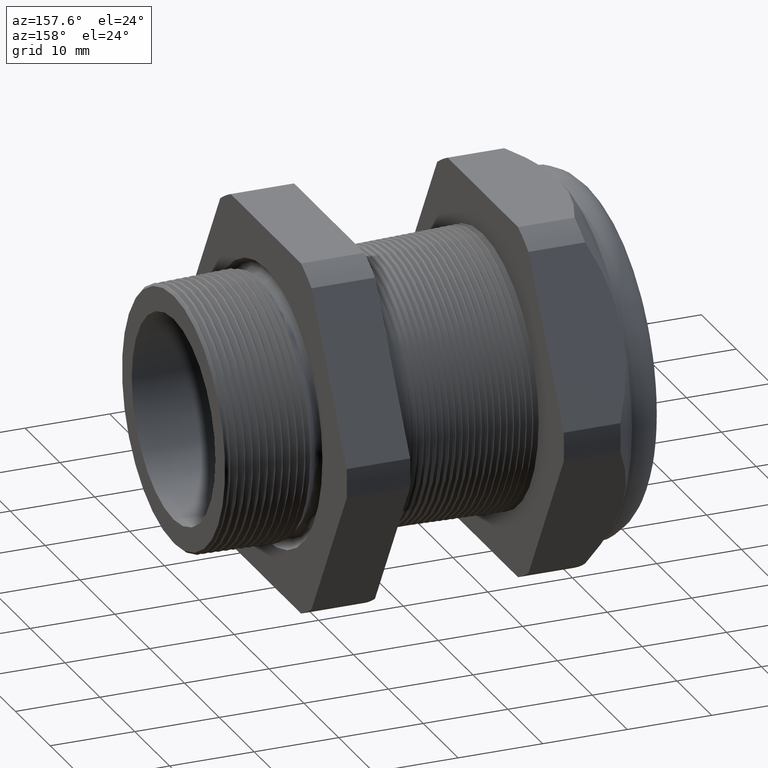
[diagram: clean part render]
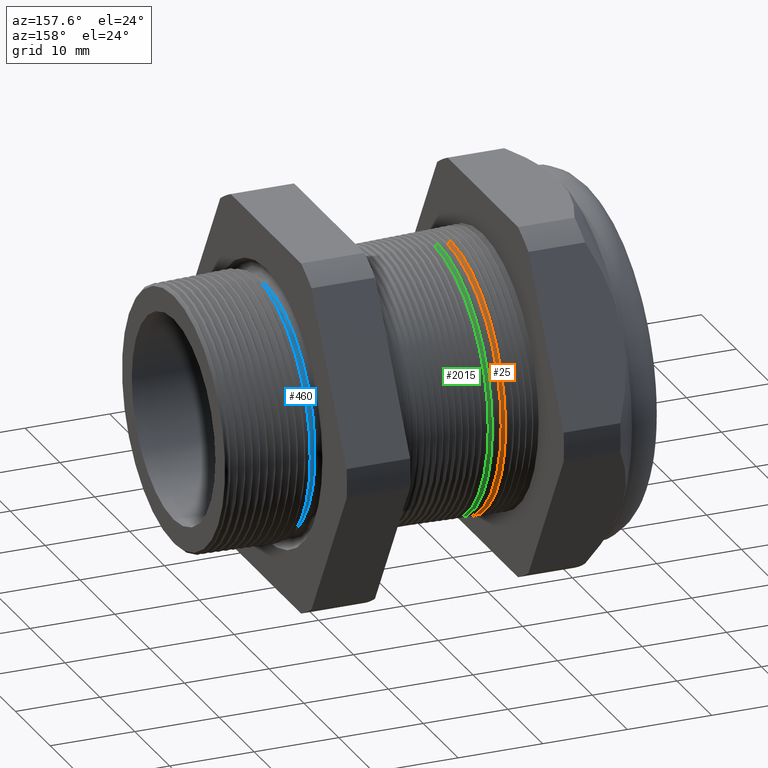
[diagram: same view with three faces highlighted in distinct colors, each labeled with its STEP entity id]
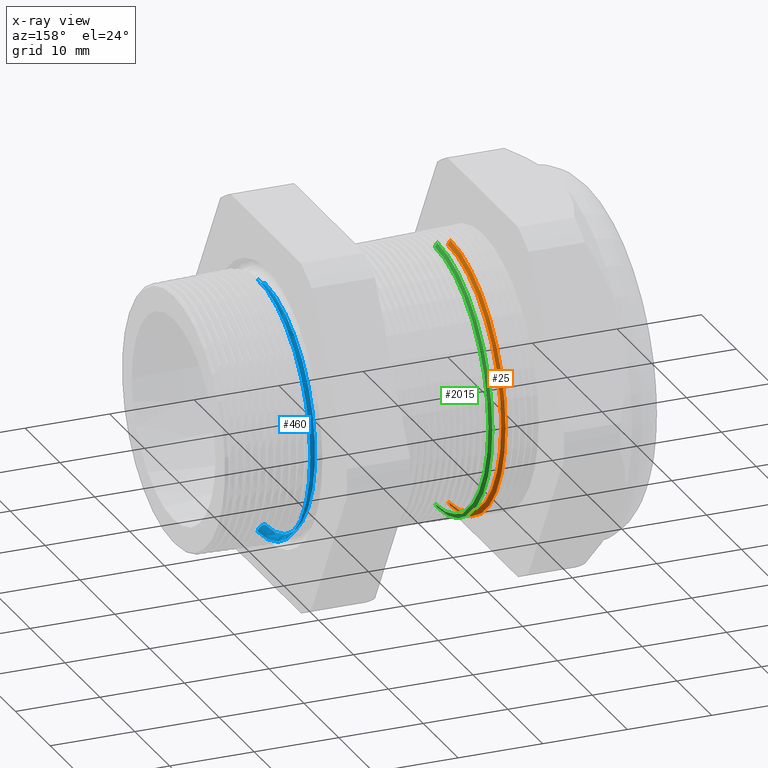
[diagram: x-ray of the same camera — body ghosted, the three highlighted faces saturated]
A machine part, auxiliary view with three faces highlighted in distinct colors.
The next image is the same camera in x-ray (body ghosted, the three faces saturated) — at least one of them is partly hidden behind the body in this view.
Their STEP definitions:

[orange] entity #25 — the highlighted conical surface has half-angle 61.5 deg.
#15 = EDGE_LOOP ( 'NONE', ( #142, #133, #102, #105 ) ) ;
#25 = ADVANCED_FACE ( 'NONE', ( #2114 ), #2113, .T. ) ;
#30 = VERTEX_POINT ( 'NONE', #2165 ) ;
#32 = VERTEX_POINT ( 'NONE', #2159 ) ;
#36 = EDGE_CURVE ( 'NONE', #32, #30, #2157, .T. ) ;
#102 = ORIENTED_EDGE ( 'NONE', *, *, #103, .T. ) ;
#103 = EDGE_CURVE ( 'NONE', #110, #104, #2287, .T. ) ;
#104 = VERTEX_POINT ( 'NONE', #2282 ) ;
#105 = ORIENTED_EDGE ( 'NONE', *, *, #107, .F. ) ;
#107 = EDGE_CURVE ( 'NONE', #30, #104, #2281, .T. ) ;
#110 = VERTEX_POINT ( 'NONE', #2270 ) ;
#131 = EDGE_CURVE ( 'NONE', #32, #110, #280, .T. ) ;
#133 = ORIENTED_EDGE ( 'NONE', *, *, #131, .T. ) ;
#142 = ORIENTED_EDGE ( 'NONE', *, *, #36, .F. ) ;
#279 = CARTESIAN_POINT ( 'NONE',  ( -1.170314960629921000, 7.715274834628325400E-017, -0.6300000000000000000 ) ) ;
#280 = LINE ( 'NONE', #279, #2359 ) ;
#2109 = DIRECTION ( 'NONE',  ( 0.0000000000000000000, 0.0000000000000000000, 1.000000000000000000 ) ) ;
#2110 = DIRECTION ( 'NONE',  ( -1.000000000000000000, 0.0000000000000000000, 0.0000000000000000000 ) ) ;
#2111 = CARTESIAN_POINT ( 'NONE',  ( -1.170314960629921000, 0.0000000000000000000, 0.0000000000000000000 ) ) ;
#2112 = AXIS2_PLACEMENT_3D ( 'NONE', #2111, #2110, #2109 ) ;
#2113 = CONICAL_SURFACE ( 'NONE', #2112, 0.6300000000000000000, 1.073377489976504700 ) ;
#2114 = FACE_OUTER_BOUND ( 'NONE', #15, .T. ) ;
#2153 = DIRECTION ( 'NONE',  ( 0.0000000000000000000, 0.0000000000000000000, -1.000000000000000000 ) ) ;
#2154 = DIRECTION ( 'NONE',  ( 1.000000000000000000, 0.0000000000000000000, 0.0000000000000000000 ) ) ;
#2155 = CARTESIAN_POINT ( 'NONE',  ( -1.156540573695817200, 0.0000000000000000000, 0.0000000000000000000 ) ) ;
#2156 = AXIS2_PLACEMENT_3D ( 'NONE', #2155, #2154, #2153 ) ;
#2157 = CIRCLE ( 'NONE', #2156, 0.6046307351718083200 ) ;
#2159 = CARTESIAN_POINT ( 'NONE',  ( -1.156540573695817200, 7.535534621424328300E-017, -0.6046307351718083200 ) ) ;
#2165 = CARTESIAN_POINT ( 'NONE',  ( -1.156540573695817200, 0.0000000000000000000, 0.6046307351718083200 ) ) ;
#2270 = CARTESIAN_POINT ( 'NONE',  ( -1.168151532141441500, 7.667312240313376200E-017, -0.6260154603959030600 ) ) ;
#2278 = DIRECTION ( 'NONE',  ( -0.4771587602596153400, 0.0000000000000000000, 0.8788171126619615000 ) ) ;
#2279 = VECTOR ( 'NONE', #2278, 39.37007874015748900 ) ;
#2280 = CARTESIAN_POINT ( 'NONE',  ( -1.170314960629921000, 0.0000000000000000000, 0.6300000000000000000 ) ) ;
#2281 = LINE ( 'NONE', #2280, #2279 ) ;
#2282 = CARTESIAN_POINT ( 'NONE',  ( -1.168151532141441500, 0.0000000000000000000, 0.6260154603959030600 ) ) ;
#2283 = DIRECTION ( 'NONE',  ( 0.0000000000000000000, 0.0000000000000000000, 1.000000000000000000 ) ) ;
#2284 = DIRECTION ( 'NONE',  ( 1.000000000000000000, 0.0000000000000000000, 0.0000000000000000000 ) ) ;
#2285 = CARTESIAN_POINT ( 'NONE',  ( -1.168151532141441500, 0.0000000000000000000, 0.0000000000000000000 ) ) ;
#2286 = AXIS2_PLACEMENT_3D ( 'NONE', #2285, #2284, #2283 ) ;
#2287 = CIRCLE ( 'NONE', #2286, 0.6260154603959030600 ) ;
#2358 = DIRECTION ( 'NONE',  ( -0.4771587602596153400, 1.076240564057390000E-016, -0.8788171126619615000 ) ) ;
#2359 = VECTOR ( 'NONE', #2358, 39.37007874015748900 ) ;

[blue] entity #460 — the highlighted toroidal blend (fillet) surface has major radius 15.33 mm and minor (blend) radius 0.889 mm.
#399 = EDGE_CURVE ( 'NONE', #444, #662, #2847, .T. ) ;
#400 = EDGE_CURVE ( 'NONE', #662, #664, #2842, .T. ) ;
#412 = ORIENTED_EDGE ( 'NONE', *, *, #400, .F. ) ;
#428 = EDGE_CURVE ( 'NONE', #444, #461, #2907, .T. ) ;
#433 = ORIENTED_EDGE ( 'NONE', *, *, #436, .T. ) ;
#436 = EDGE_CURVE ( 'NONE', #461, #664, #2953, .T. ) ;
#441 = ORIENTED_EDGE ( 'NONE', *, *, #428, .T. ) ;
#443 = ORIENTED_EDGE ( 'NONE', *, *, #399, .F. ) ;
#444 = VERTEX_POINT ( 'NONE', #2936 ) ;
#459 = EDGE_LOOP ( 'NONE', ( #441, #433, #412, #443 ) ) ;
#460 = ADVANCED_FACE ( 'NONE', ( #2975 ), #2974, .F. ) ;
#461 = VERTEX_POINT ( 'NONE', #2969 ) ;
#662 = VERTEX_POINT ( 'NONE', #3353 ) ;
#664 = VERTEX_POINT ( 'NONE', #3352 ) ;
#2838 = DIRECTION ( 'NONE',  ( 0.0000000000000000000, 1.224646799147357400E-016, 1.000000000000000000 ) ) ;
#2839 = DIRECTION ( 'NONE',  ( 0.0000000000000000000, 1.000000000000000000, -1.224646799147353200E-016 ) ) ;
#2840 = CARTESIAN_POINT ( 'NONE',  ( -0.3049999999999998300, 7.391281930635429700E-017, 0.6035439716807757800 ) ) ;
#2841 = AXIS2_PLACEMENT_3D ( 'NONE', #2840, #2839, #2838 ) ;
#2842 = CIRCLE ( 'NONE', #2841, 0.03499999999999989900 ) ;
#2843 = DIRECTION ( 'NONE',  ( 0.0000000000000000000, 0.0000000000000000000, 1.000000000000000000 ) ) ;
#2844 = DIRECTION ( 'NONE',  ( 1.000000000000000000, 0.0000000000000000000, 0.0000000000000000000 ) ) ;
#2845 = CARTESIAN_POINT ( 'NONE',  ( -0.2708463023710455100, 0.0000000000000000000, 0.0000000000000000000 ) ) ;
#2846 = AXIS2_PLACEMENT_3D ( 'NONE', #2845, #2844, #2843 ) ;
#2847 = CIRCLE ( 'NONE', #2846, 0.5958938123183817900 ) ;
#2903 = DIRECTION ( 'NONE',  ( 0.0000000000000000000, 0.0000000000000000000, -1.000000000000000000 ) ) ;
#2904 = DIRECTION ( 'NONE',  ( 0.0000000000000000000, -1.000000000000000000, 0.0000000000000000000 ) ) ;
#2905 = CARTESIAN_POINT ( 'NONE',  ( -0.3049999999999998300, 0.0000000000000000000, -0.6035439716807757800 ) ) ;
#2906 = AXIS2_PLACEMENT_3D ( 'NONE', #2905, #2904, #2903 ) ;
#2907 = CIRCLE ( 'NONE', #2906, 0.03499999999999989900 ) ;
#2936 = CARTESIAN_POINT ( 'NONE',  ( -0.2708463023710455100, 7.297594498874198900E-017, -0.5958938123183817900 ) ) ;
#2950 = DIRECTION ( 'NONE',  ( 0.0000000000000000000, 0.0000000000000000000, -1.000000000000000000 ) ) ;
#2951 = DIRECTION ( 'NONE',  ( 1.000000000000000000, 0.0000000000000000000, 0.0000000000000000000 ) ) ;
#2952 = AXIS2_PLACEMENT_3D ( 'NONE', #2959, #2951, #2950 ) ;
#2953 = CIRCLE ( 'NONE', #2952, 0.5685439716807758600 ) ;
#2959 = CARTESIAN_POINT ( 'NONE',  ( -0.3049999999999998300, 0.0000000000000000000, 0.0000000000000000000 ) ) ;
#2969 = CARTESIAN_POINT ( 'NONE',  ( -0.3049999999999998300, 0.0000000000000000000, -0.5685439716807758600 ) ) ;
#2970 = DIRECTION ( 'NONE',  ( 0.0000000000000000000, 0.0000000000000000000, -1.000000000000000000 ) ) ;
#2971 = DIRECTION ( 'NONE',  ( 1.000000000000000000, 0.0000000000000000000, 0.0000000000000000000 ) ) ;
#2972 = CARTESIAN_POINT ( 'NONE',  ( -0.3049999999999998300, 0.0000000000000000000, 0.0000000000000000000 ) ) ;
#2973 = AXIS2_PLACEMENT_3D ( 'NONE', #2972, #2971, #2970 ) ;
#2974 = TOROIDAL_SURFACE ( 'NONE', #2973, 0.6035439716807757800, 0.03499999999999994800 ) ;
#2975 = FACE_OUTER_BOUND ( 'NONE', #459, .T. ) ;
#3352 = CARTESIAN_POINT ( 'NONE',  ( -0.3049999999999998300, 6.962655550933855800E-017, 0.5685439716807758600 ) ) ;
#3353 = CARTESIAN_POINT ( 'NONE',  ( -0.2708463023710455100, 0.0000000000000000000, 0.5958938123183817900 ) ) ;

[green] entity #2015 — the highlighted conical surface has half-angle 61.5 deg.
#1977 = VERTEX_POINT ( 'NONE', #5478 ) ;
#1991 = VERTEX_POINT ( 'NONE', #5517 ) ;
#1992 = EDGE_CURVE ( 'NONE', #1991, #1977, #5516, .T. ) ;
#2010 = EDGE_CURVE ( 'NONE', #1991, #2011, #5547, .T. ) ;
#2011 = VERTEX_POINT ( 'NONE', #5543 ) ;
#2015 = ADVANCED_FACE ( 'NONE', ( #5594 ), #5593, .T. ) ;
#2018 = EDGE_LOOP ( 'NONE', ( #2020, #2024, #2049, #2043 ) ) ;
#2020 = ORIENTED_EDGE ( 'NONE', *, *, #1992, .F. ) ;
#2024 = ORIENTED_EDGE ( 'NONE', *, *, #2010, .T. ) ;
#2038 = EDGE_CURVE ( 'NONE', #1977, #2040, #5619, .T. ) ;
#2040 = VERTEX_POINT ( 'NONE', #5615 ) ;
#2043 = ORIENTED_EDGE ( 'NONE', *, *, #2038, .F. ) ;
#2044 = EDGE_CURVE ( 'NONE', #2011, #2040, #5614, .T. ) ;
#2049 = ORIENTED_EDGE ( 'NONE', *, *, #2044, .T. ) ;
#5478 = CARTESIAN_POINT ( 'NONE',  ( -1.096540573695817400, 0.0000000000000000000, 0.6046307351718083200 ) ) ;
#5512 = DIRECTION ( 'NONE',  ( 0.0000000000000000000, 0.0000000000000000000, -1.000000000000000000 ) ) ;
#5513 = DIRECTION ( 'NONE',  ( 1.000000000000000000, 0.0000000000000000000, 0.0000000000000000000 ) ) ;
#5514 = CARTESIAN_POINT ( 'NONE',  ( -1.096540573695817400, 0.0000000000000000000, 0.0000000000000000000 ) ) ;
#5515 = AXIS2_PLACEMENT_3D ( 'NONE', #5514, #5513, #5512 ) ;
#5516 = CIRCLE ( 'NONE', #5515, 0.6046307351718083200 ) ;
#5517 = CARTESIAN_POINT ( 'NONE',  ( -1.096540573695817400, 7.525775314079861500E-017, -0.6046307351718083200 ) ) ;
#5543 = CARTESIAN_POINT ( 'NONE',  ( -1.107286160746049800, 7.648084321925409500E-017, -0.6244216445542644100 ) ) ;
#5544 = DIRECTION ( 'NONE',  ( -0.4771587602596153400, 1.076240564057390000E-016, -0.8788171126619615000 ) ) ;
#5545 = VECTOR ( 'NONE', #5544, 39.37007874015748900 ) ;
#5546 = CARTESIAN_POINT ( 'NONE',  ( -1.110314960629921200, 7.715274834628325400E-017, -0.6300000000000000000 ) ) ;
#5547 = LINE ( 'NONE', #5546, #5545 ) ;
#5588 = DIRECTION ( 'NONE',  ( 0.0000000000000000000, 0.0000000000000000000, 1.000000000000000000 ) ) ;
#5589 = DIRECTION ( 'NONE',  ( -1.000000000000000000, 0.0000000000000000000, 0.0000000000000000000 ) ) ;
#5590 = CARTESIAN_POINT ( 'NONE',  ( -1.110314960629921200, 0.0000000000000000000, 0.0000000000000000000 ) ) ;
#5591 = AXIS2_PLACEMENT_3D ( 'NONE', #5590, #5589, #5588 ) ;
#5593 = CONICAL_SURFACE ( 'NONE', #5591, 0.6300000000000000000, 1.073377489976504700 ) ;
#5594 = FACE_OUTER_BOUND ( 'NONE', #2018, .T. ) ;
#5610 = DIRECTION ( 'NONE',  ( 0.0000000000000000000, 0.0000000000000000000, 1.000000000000000000 ) ) ;
#5611 = DIRECTION ( 'NONE',  ( 1.000000000000000000, 0.0000000000000000000, 0.0000000000000000000 ) ) ;
#5612 = CARTESIAN_POINT ( 'NONE',  ( -1.107286160746049800, 0.0000000000000000000, 0.0000000000000000000 ) ) ;
#5613 = AXIS2_PLACEMENT_3D ( 'NONE', #5612, #5611, #5610 ) ;
#5614 = CIRCLE ( 'NONE', #5613, 0.6244216445542644100 ) ;
#5615 = CARTESIAN_POINT ( 'NONE',  ( -1.107286160746049800, 0.0000000000000000000, 0.6244216445542644100 ) ) ;
#5616 = DIRECTION ( 'NONE',  ( -0.4771587602596153400, 0.0000000000000000000, 0.8788171126619615000 ) ) ;
#5617 = VECTOR ( 'NONE', #5616, 39.37007874015748900 ) ;
#5618 = CARTESIAN_POINT ( 'NONE',  ( -1.110314960629921200, 0.0000000000000000000, 0.6300000000000000000 ) ) ;
#5619 = LINE ( 'NONE', #5618, #5617 ) ;